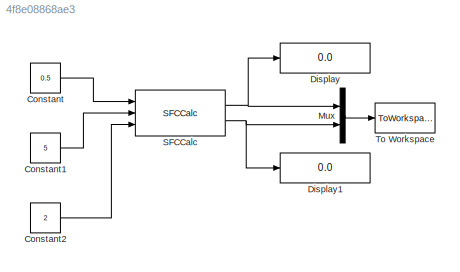
MODEL slx_4f8e08868ae3
KIND model
CONFIG AbsTol = auto
CONFIG EnableMultiTasking = on
CONFIG FixedStep = auto
CONFIG MaxStep = auto
CONFIG MinStep = auto
CONFIG RelTol = 1e-3
CONFIG SampleTimeConstraint = Unconstrained
CONFIG Solver = ode45
CONFIG SolverName = ode45
CONFIG StartTime = 0.0
CONFIG StopTime = 10.0
BLOCK [Constant] Constant
  Value = 0.5
BLOCK [Constant] Constant1
  Value = 5
BLOCK [Constant] Constant2
  Value = 2
BLOCK [Display] Display
  Decimation = 1
  Ports = [1]
BLOCK [Display] Display1
  Decimation = 1
  Ports = [1]
BLOCK [Mux] Mux
  DisplayOption = bar
  Inputs = 2
  Ports = [2, 1]
BLOCK [Reference] SFCCalc  REF=Lib_Turbo_SFCCalc_TMATS/SFCCalc
  Ports = [3, 2]
  SourceBlock = Lib_Turbo_SFCCalc_TMATS/SFCCalc
  SourceType = TMATS: SFC Calculation Library Block
BLOCK [ToWorkspace] To Workspace
  MaxDataPoints = inf
  Ports = [1]
  SampleTime = -1
  SaveFormat = Timeseries
  VariableName = simout
LINE Constant1:1 -> SFCCalc:2
LINE Constant2:1 -> SFCCalc:3
LINE Constant:1 -> SFCCalc:1
LINE Mux:1 -> To Workspace:1
NET SFCCalc:1 -> Display:1, Mux:1
NET SFCCalc:2 -> Display1:1, Mux:2
note: NET lines group one-source signal fan-out (src -> all destinations, sorted); 1:1 wires keep LINE
